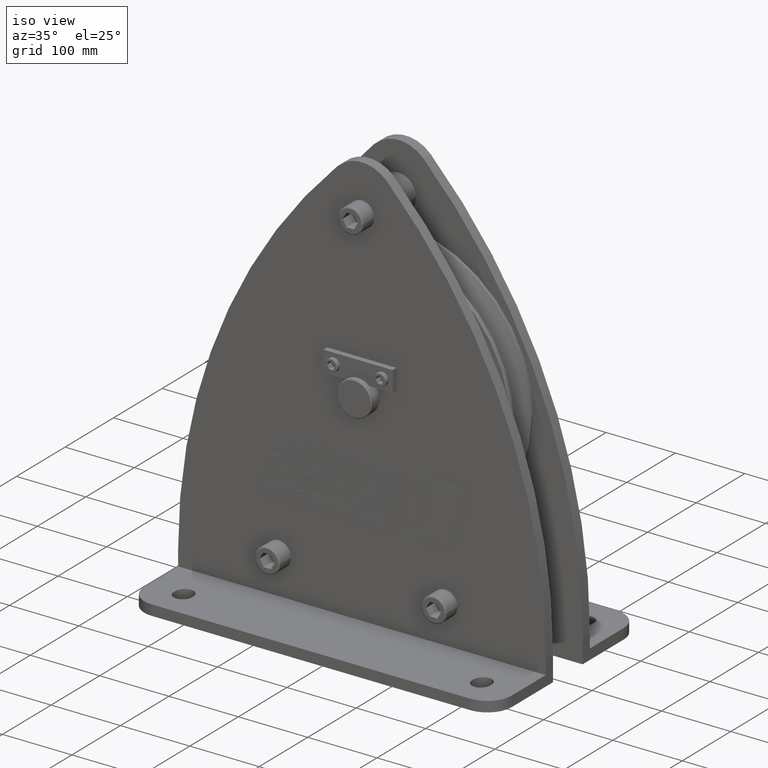
[diagram: clean part render]
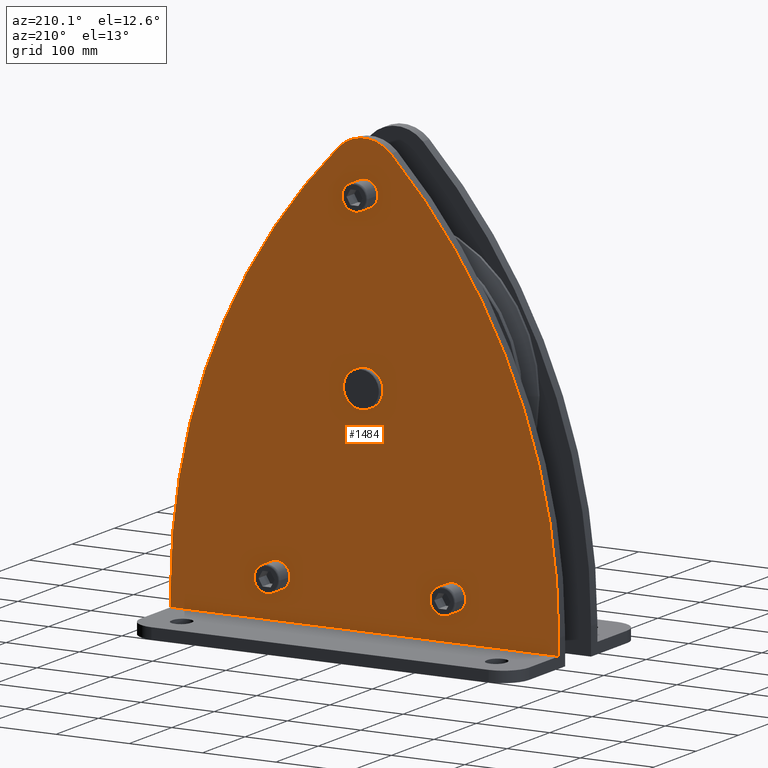
[diagram: tour spotlight — one face highlighted and labeled with its STEP entity id]
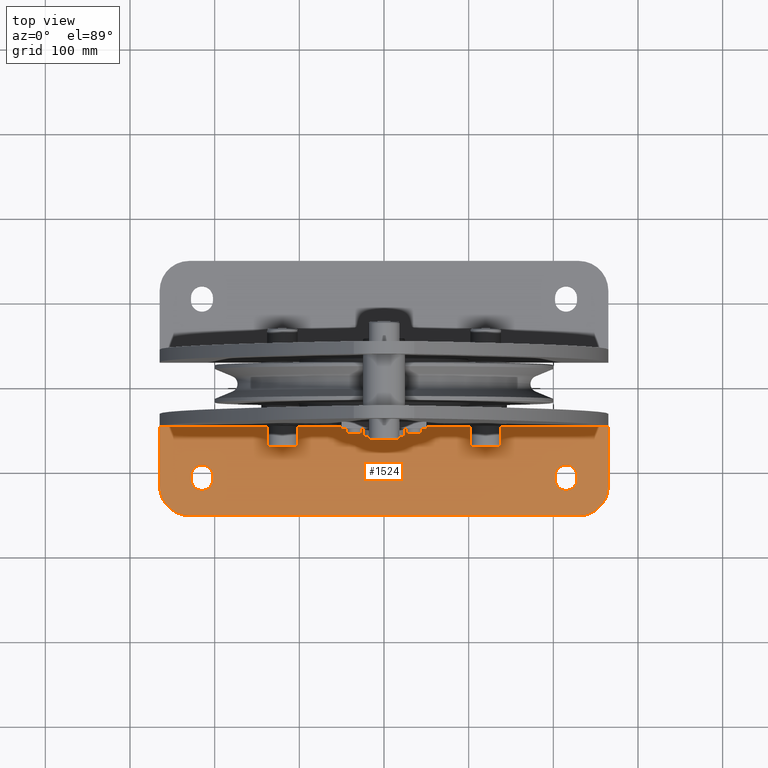
[diagram: tour spotlight — one face highlighted and labeled with its STEP entity id]
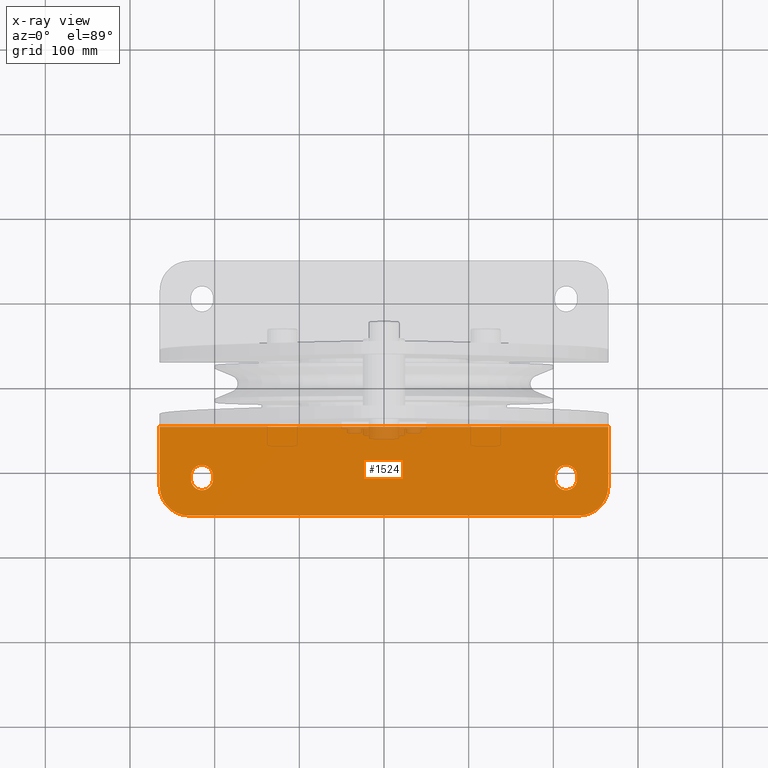
[diagram: x-ray of the same camera — body ghosted, this tour face saturated]
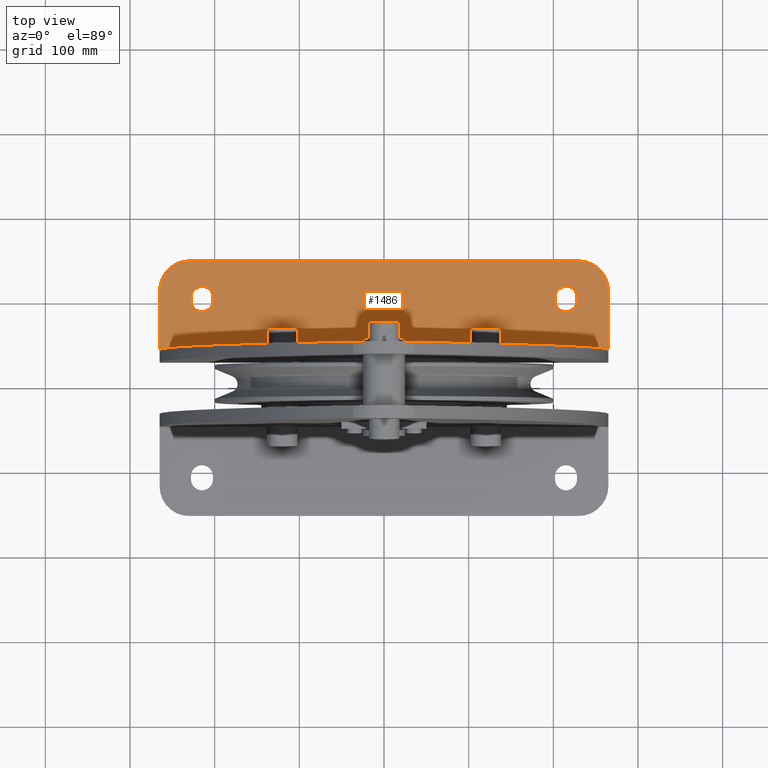
[diagram: tour spotlight — one face highlighted and labeled with its STEP entity id]
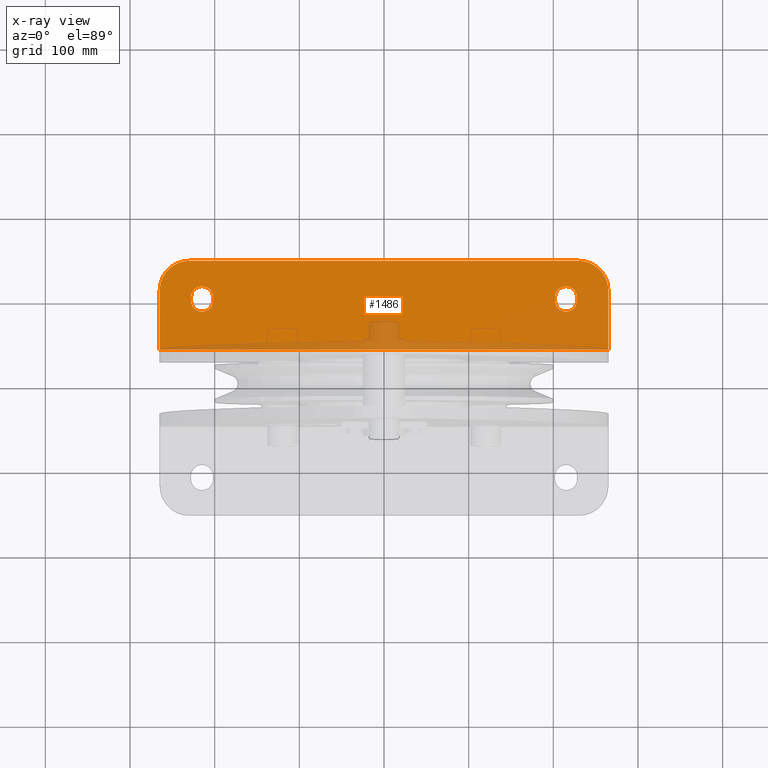
[diagram: x-ray of the same camera — body ghosted, this tour face saturated]
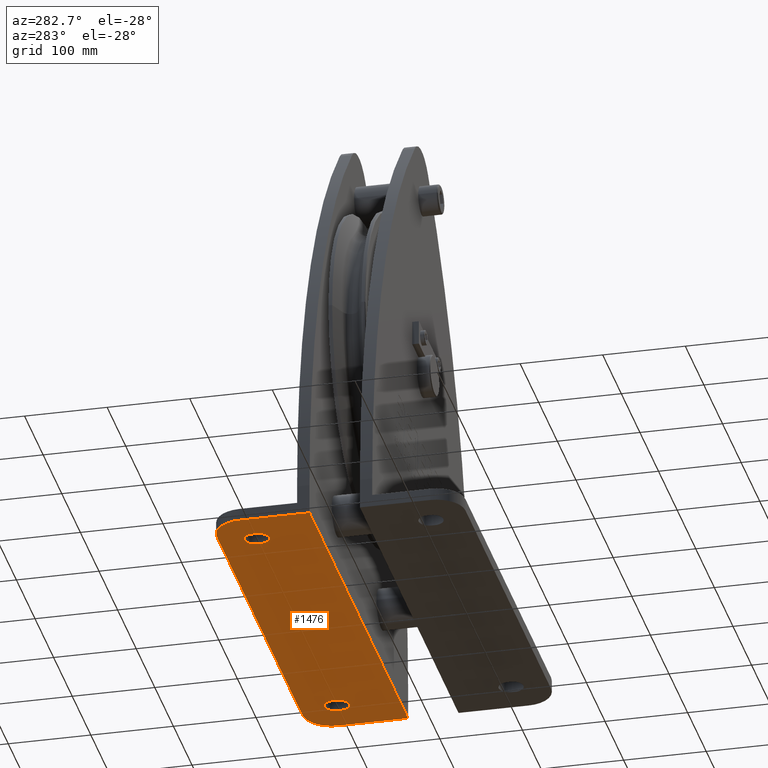
[diagram: tour spotlight — one face highlighted and labeled with its STEP entity id]
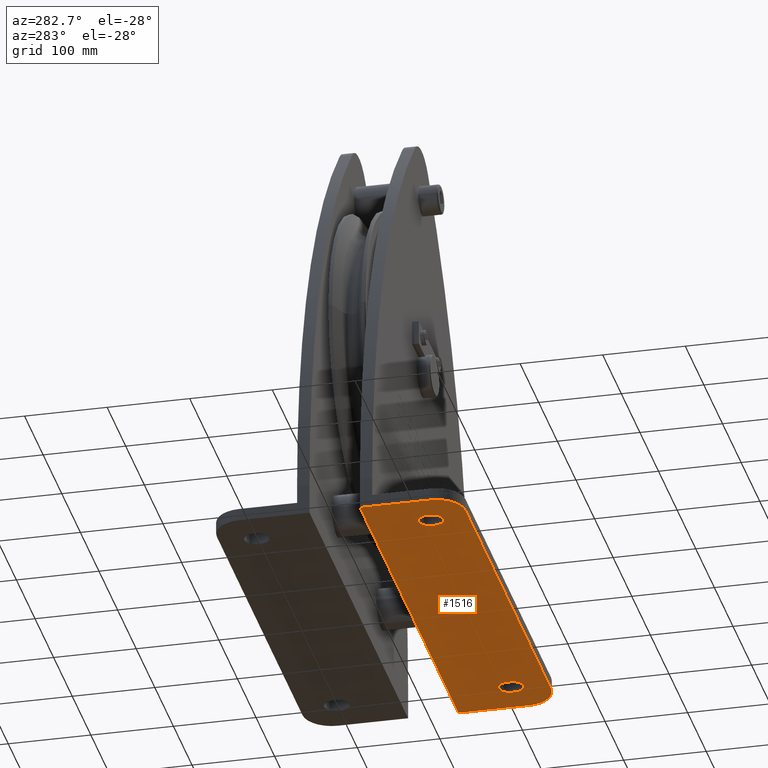
[diagram: tour spotlight — one face highlighted and labeled with its STEP entity id]
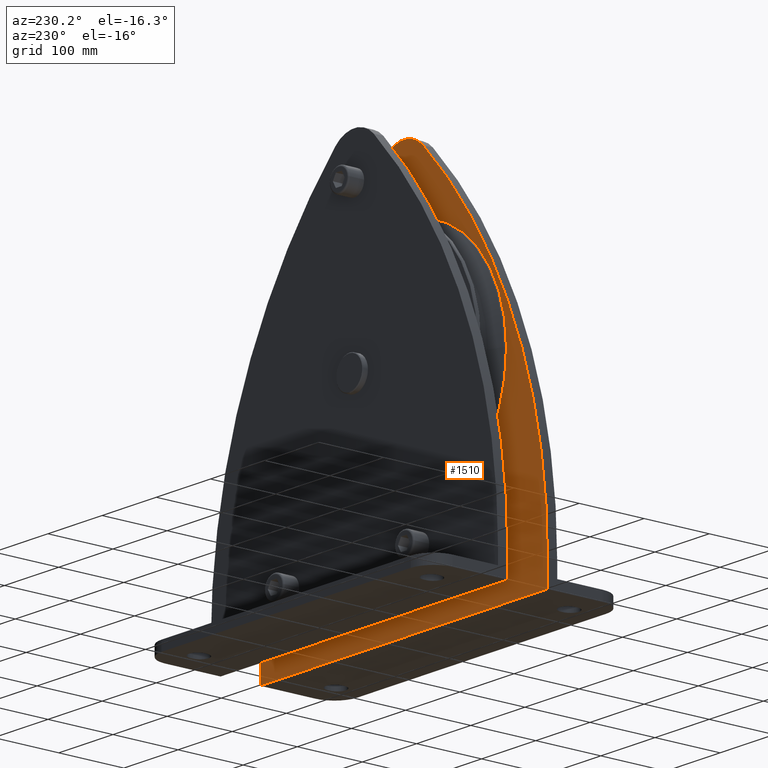
[diagram: tour spotlight — one face highlighted and labeled with its STEP entity id]
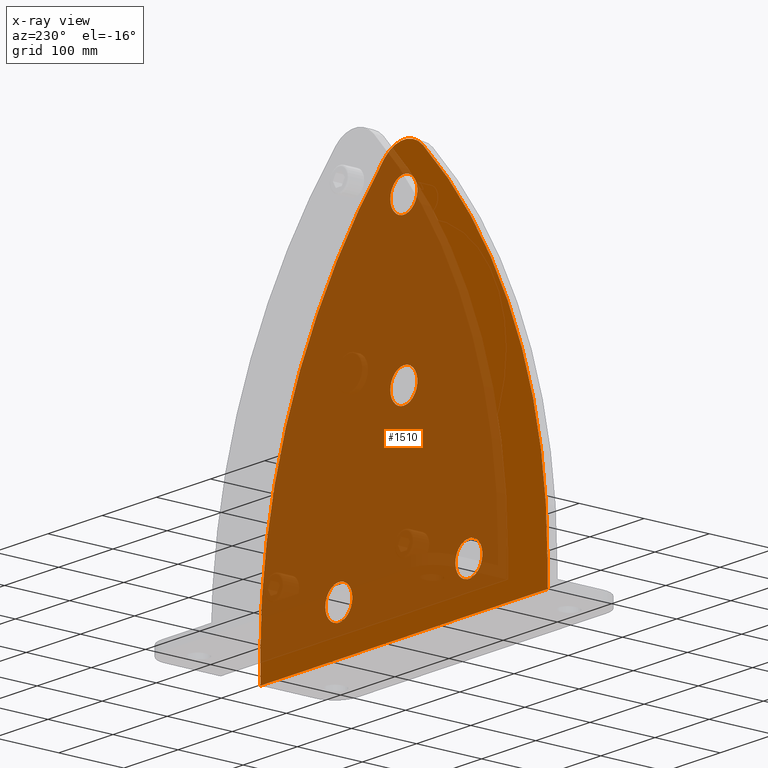
[diagram: x-ray of the same camera — body ghosted, this tour face saturated]
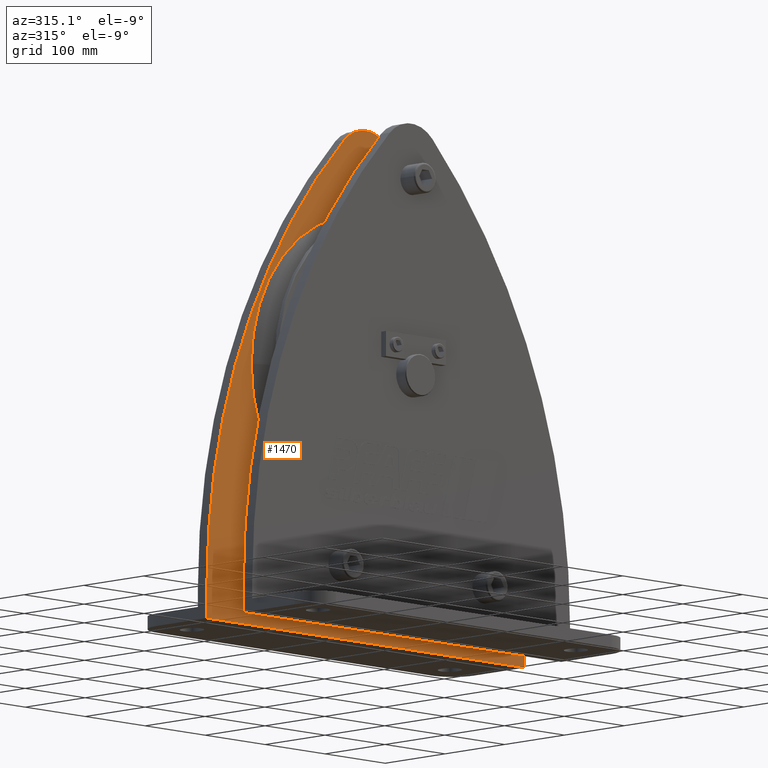
[diagram: tour spotlight — one face highlighted and labeled with its STEP entity id]
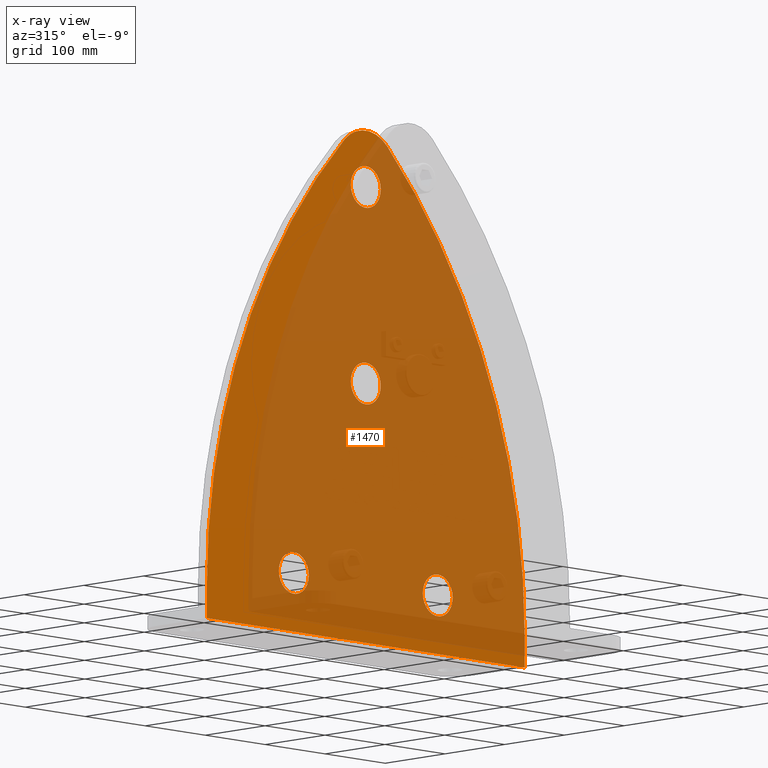
[diagram: x-ray of the same camera — body ghosted, this tour face saturated]
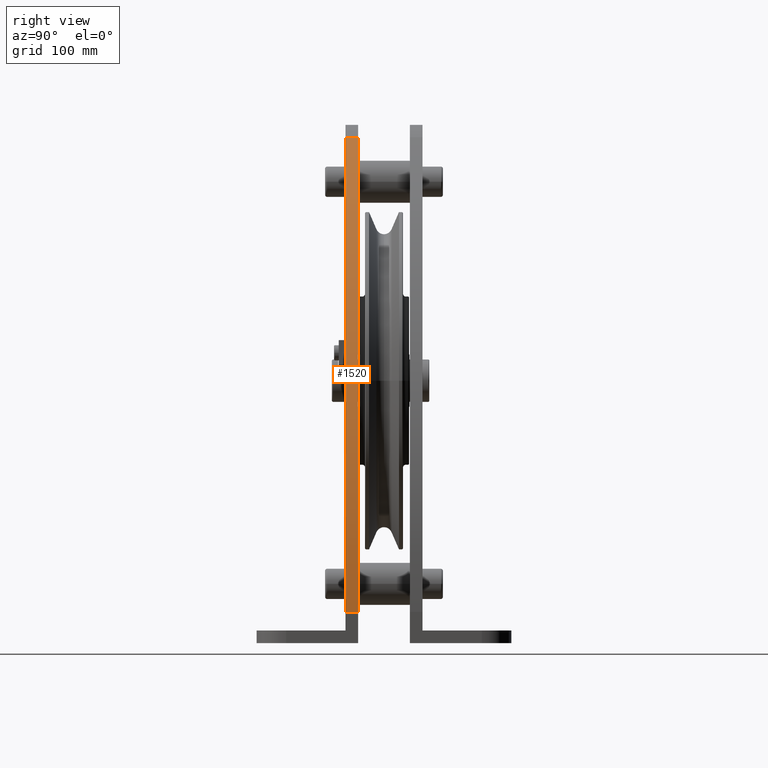
[diagram: tour spotlight — one face highlighted and labeled with its STEP entity id]
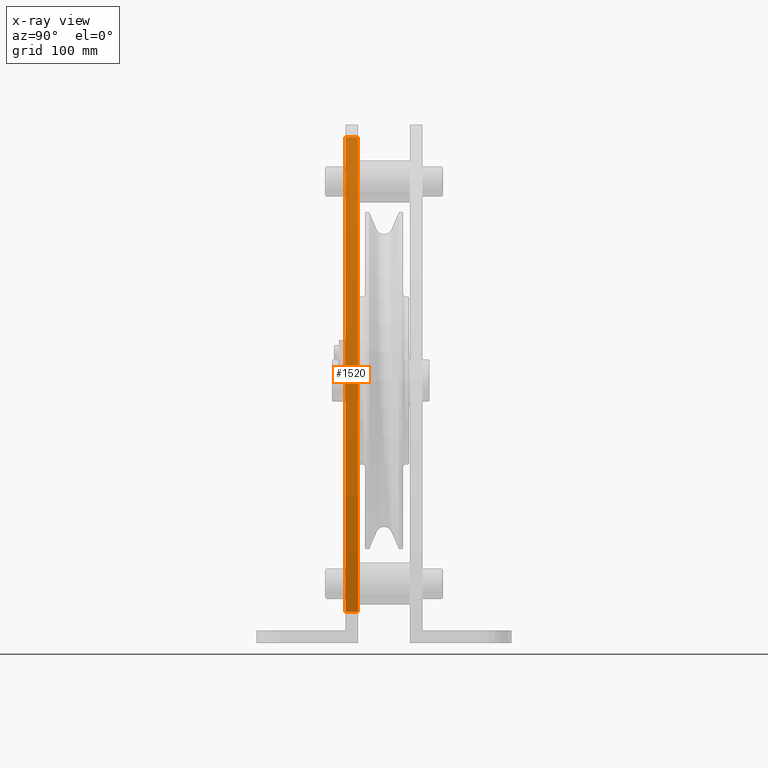
[diagram: x-ray of the same camera — body ghosted, this tour face saturated]
A machine part: a face-by-face anatomy tour. The part has 641 B-rep faces; the first image is the clean iso view, then the 8 largest visible faces are spotlighted one at a time (largest first), each with its STEP entity span.

Face 1 — auxiliary view, entity #1484. In plain terms, the highlighted planar face has unit normal (0, 1, 0).
Definition (entity closure, byte-faithful):
#1484=ADVANCED_FACE('',(#3237,#3238,#3239,#3240,#3241),#3242,.T.);
#3237=FACE_BOUND('',#5269,.T.);
#3238=FACE_BOUND('',#5270,.T.);
#3239=FACE_BOUND('',#5271,.T.);
#3240=FACE_BOUND('',#5272,.T.);
#3241=FACE_OUTER_BOUND('',#5273,.T.);
#3242=PLANE('',#5274);
#5269=EDGE_LOOP('',(#9953,#9954));
#5270=EDGE_LOOP('',(#9955,#9956));
#5271=EDGE_LOOP('',(#9957,#9958));
#5272=EDGE_LOOP('',(#9959,#9960,#9961));
#5273=EDGE_LOOP('',(#9962,#9963,#9964,#9965,#9966,#9967));
#5274=AXIS2_PLACEMENT_3D('',#9968,#9969,#9970);
#9953=ORIENTED_EDGE('',*,*,#12177,.T.);
#9954=ORIENTED_EDGE('',*,*,#13816,.T.);
#9955=ORIENTED_EDGE('',*,*,#12556,.T.);
#9956=ORIENTED_EDGE('',*,*,#13771,.T.);
#9957=ORIENTED_EDGE('',*,*,#12186,.T.);
#9958=ORIENTED_EDGE('',*,*,#13817,.T.);
#9959=ORIENTED_EDGE('',*,*,#12232,.T.);
#9960=ORIENTED_EDGE('',*,*,#13818,.T.);
#9961=ORIENTED_EDGE('',*,*,#12233,.T.);
#9962=ORIENTED_EDGE('',*,*,#13819,.T.);
#9963=ORIENTED_EDGE('',*,*,#13806,.F.);
#9964=ORIENTED_EDGE('',*,*,#13811,.F.);
#9965=ORIENTED_EDGE('',*,*,#13814,.F.);
#9966=ORIENTED_EDGE('',*,*,#13784,.F.);
#9967=ORIENTED_EDGE('',*,*,#13791,.F.);
#9968=CARTESIAN_POINT('',(-1.56119597077758E-012,45.5,-70.8780156493509));
#9969=DIRECTION('',(0.0,1.0,0.0));
#9970=DIRECTION('',(-1.0,0.0,0.0));
#12177=EDGE_CURVE('',#14637,#14639,#14641,.T.);
#12186=EDGE_CURVE('',#14652,#14654,#14656,.T.);
#12232=EDGE_CURVE('',#14735,#14732,#14736,.T.);
#12233=EDGE_CURVE('',#14737,#14735,#14738,.T.);
#12556=EDGE_CURVE('',#15268,#15272,#15274,.T.);
#13771=EDGE_CURVE('',#15272,#15268,#17082,.T.);
#13784=EDGE_CURVE('',#17101,#17102,#17103,.T.);
#13791=EDGE_CURVE('',#17111,#17101,#17113,.T.);
#13806=EDGE_CURVE('',#17139,#17140,#17141,.T.);
#13811=EDGE_CURVE('',#17147,#17139,#17148,.T.);
#13814=EDGE_CURVE('',#17102,#17147,#17151,.T.);
#13816=EDGE_CURVE('',#14639,#14637,#17153,.T.);
#13817=EDGE_CURVE('',#14654,#14652,#17154,.T.);
#13818=EDGE_CURVE('',#14732,#14737,#17155,.T.);
#13819=EDGE_CURVE('',#17111,#17140,#17156,.T.);
#14637=VERTEX_POINT('',#19396);
#14639=VERTEX_POINT('',#19399);
#14641=CIRCLE('',#19402,18.0);
#14652=VERTEX_POINT('',#19413);
#14654=VERTEX_POINT('',#19416);
#14656=CIRCLE('',#19419,18.0);
#14732=VERTEX_POINT('',#19507);
#14735=VERTEX_POINT('',#19511);
#14736=CIRCLE('',#19512,25.0);
#14737=VERTEX_POINT('',#19513);
#14738=CIRCLE('',#19514,25.0);
#15268=VERTEX_POINT('',#22132);
#15272=VERTEX_POINT('',#22137);
#15274=CIRCLE('',#22140,18.0);
#17082=CIRCLE('',#24603,18.0);
#17101=VERTEX_POINT('',#24625);
#17102=VERTEX_POINT('',#24626);
#17103=CIRCLE('',#24627,799.999999964301);
#17111=VERTEX_POINT('',#24639);
#17113=LINE('',#24642,#24643);
#17139=VERTEX_POINT('',#24675);
#17140=VERTEX_POINT('',#24676);
#17141=LINE('',#24677,#24678);
#17147=VERTEX_POINT('',#24687);
#17148=CIRCLE('',#24688,799.999999964301);
#17151=CIRCLE('',#24692,50.0000000115002);
#17153=CIRCLE('',#24694,18.0);
#17154=CIRCLE('',#24695,18.0);
#17155=CIRCLE('',#24696,25.0);
#17156=LINE('',#24697,#24698);
#19396=CARTESIAN_POINT('',(-102.0,45.5,-240.0));
#19399=CARTESIAN_POINT('',(-138.0,45.5,-240.0));
#19402=AXIS2_PLACEMENT_3D('',#26964,#26965,#26966);
#19413=CARTESIAN_POINT('',(18.0,45.5,235.0));
#19416=CARTESIAN_POINT('',(-18.0,45.5,235.0));
#19419=AXIS2_PLACEMENT_3D('',#26981,#26982,#26983);
#19507=CARTESIAN_POINT('',(3.06161699786838E-015,45.5,-25.0));
#19511=CARTESIAN_POINT('',(-25.0,45.5,0.0));
#19512=AXIS2_PLACEMENT_3D('',#27063,#27064,#27065);
#19513=CARTESIAN_POINT('',(-3.06161699786838E-015,45.5,25.0));
#19514=AXIS2_PLACEMENT_3D('',#27066,#27067,#27068);
#22132=CARTESIAN_POINT('',(138.0,45.5,-240.0));
#22137=CARTESIAN_POINT('',(102.0,45.5,-240.0));
#22140=AXIS2_PLACEMENT_3D('',#27496,#27497,#27498);
#24603=AXIS2_PLACEMENT_3D('',#28862,#28863,#28864);
#24625=CARTESIAN_POINT('',(265.0,45.5,-273.06553711024));
#24626=CARTESIAN_POINT('',(35.6666666697264,45.5,287.594391510256));
#24627=AXIS2_PLACEMENT_3D('',#28889,#28890,#28891);
#24639=CARTESIAN_POINT('',(265.0,45.5,-295.0));
#24642=CARTESIAN_POINT('',(265.0,45.5,-273.06553711));
#24643=VECTOR('',#28897,1.0);
#24675=CARTESIAN_POINT('',(-265.0,45.5,-273.06553711));
#24676=CARTESIAN_POINT('',(-265.0,45.5,-295.0));
#24677=CARTESIAN_POINT('',(-265.0,45.5,-310.0));
#24678=VECTOR('',#28922,1.0);
#24687=CARTESIAN_POINT('',(-35.6666666697263,45.5,287.594391510256));
#24688=AXIS2_PLACEMENT_3D('',#28926,#28927,#28928);
#24692=AXIS2_PLACEMENT_3D('',#28930,#28931,#28932);
#24694=AXIS2_PLACEMENT_3D('',#28933,#28934,#28935);
#24695=AXIS2_PLACEMENT_3D('',#28936,#28937,#28938);
#24696=AXIS2_PLACEMENT_3D('',#28939,#28940,#28941);
#24697=CARTESIAN_POINT('',(-7.95807864051312E-013,45.5,-295.0));
#24698=VECTOR('',#28942,1.0);
#26964=CARTESIAN_POINT('',(-120.0,45.5,-240.0));
#26965=DIRECTION('',(0.0,-1.0,0.0));
#26966=DIRECTION('',(1.0,0.0,0.0));
#26981=CARTESIAN_POINT('',(0.0,45.5,235.0));
#26982=DIRECTION('',(0.0,-1.0,0.0));
#26983=DIRECTION('',(1.0,0.0,0.0));
#27063=CARTESIAN_POINT('',(0.0,45.5,0.0));
#27064=DIRECTION('',(-0.0,-1.0,-0.0));
#27065=DIRECTION('',(-1.0,0.0,0.0));
#27066=CARTESIAN_POINT('',(0.0,45.5,0.0));
#27067=DIRECTION('',(-0.0,-1.0,-0.0));
#27068=DIRECTION('',(-1.0,0.0,0.0));
#27496=CARTESIAN_POINT('',(120.0,45.5,-240.0));
#27497=DIRECTION('',(0.0,-1.0,0.0));
#27498=DIRECTION('',(1.0,0.0,0.0));
#28862=CARTESIAN_POINT('',(120.0,45.5,-240.0));
#28863=DIRECTION('',(0.0,-1.0,0.0));
#28864=DIRECTION('',(1.0,0.0,0.0));
#28889=CARTESIAN_POINT('',(-534.999999964302,45.5,-273.0655370879));
#28890=DIRECTION('',(0.0,-1.0,0.0));
#28891=DIRECTION('',(0.713333333324367,0.0,0.700824910778968));
#28897=DIRECTION('',(0.0,0.0,1.0));
#28922=DIRECTION('',(0.0,-0.0,-1.0));
#28926=CARTESIAN_POINT('',(534.999999964301,45.5,-273.0655370879));
#28927=DIRECTION('',(0.0,-1.0,-0.0));
#28928=DIRECTION('',(-1.0,0.0,-2.79251111136274E-011));
#28930=CARTESIAN_POINT('',(-1.4210854715202E-014,45.5,252.5531459585));
#28931=DIRECTION('',(0.0,-1.0,0.0));
#28932=DIRECTION('',(-0.713333333236294,0.0,0.700824910868612));
#28933=CARTESIAN_POINT('',(-120.0,45.5,-240.0));
#28934=DIRECTION('',(0.0,-1.0,0.0));
#28935=DIRECTION('',(1.0,0.0,0.0));
#28936=CARTESIAN_POINT('',(0.0,45.5,235.0));
#28937=DIRECTION('',(0.0,-1.0,0.0));
#28938=DIRECTION('',(1.0,0.0,0.0));
#28939=CARTESIAN_POINT('',(0.0,45.5,0.0));
#28940=DIRECTION('',(-0.0,-1.0,-0.0));
#28941=DIRECTION('',(-1.0,0.0,0.0));
#28942=DIRECTION('',(-1.0,0.0,0.0));

Face 2 — top view, entity #1524. An x-ray twin of the same camera follows (body ghosted, this face saturated) — the face is partly hidden behind the body. In plain terms, the highlighted planar face has unit normal (0, 0, 1).
Definition (entity closure, byte-faithful):
#1524=ADVANCED_FACE('',(#3309,#3310,#3311),#3312,.T.);
#3309=FACE_BOUND('',#5341,.T.);
#3310=FACE_BOUND('',#5342,.T.);
#3311=FACE_OUTER_BOUND('',#5343,.T.);
#3312=PLANE('',#5344);
#5341=EDGE_LOOP('',(#10159,#10160,#10161,#10162));
#5342=EDGE_LOOP('',(#10163,#10164,#10165,#10166));
#5343=EDGE_LOOP('',(#10167,#10168,#10169,#10170,#10171,#10172));
#5344=AXIS2_PLACEMENT_3D('',#10173,#10174,#10175);
#10159=ORIENTED_EDGE('',*,*,#13893,.T.);
#10160=ORIENTED_EDGE('',*,*,#13894,.T.);
#10161=ORIENTED_EDGE('',*,*,#13895,.T.);
#10162=ORIENTED_EDGE('',*,*,#13896,.T.);
#10163=ORIENTED_EDGE('',*,*,#13897,.T.);
#10164=ORIENTED_EDGE('',*,*,#13898,.T.);
#10165=ORIENTED_EDGE('',*,*,#13899,.T.);
#10166=ORIENTED_EDGE('',*,*,#13900,.T.);
#10167=ORIENTED_EDGE('',*,*,#13901,.F.);
#10168=ORIENTED_EDGE('',*,*,#13886,.F.);
#10169=ORIENTED_EDGE('',*,*,#12858,.F.);
#10170=ORIENTED_EDGE('',*,*,#13871,.F.);
#10171=ORIENTED_EDGE('',*,*,#13902,.F.);
#10172=ORIENTED_EDGE('',*,*,#13903,.F.);
#10173=CARTESIAN_POINT('',(-8.88178419700125E-015,-96.545791878059,-295.0));
#10174=DIRECTION('',(0.0,0.0,1.0));
#10175=DIRECTION('',(1.0,0.0,0.0));
#12858=EDGE_CURVE('',#15820,#15821,#15822,.T.);
#13871=EDGE_CURVE('',#17225,#15820,#17227,.T.);
#13886=EDGE_CURVE('',#15821,#17253,#17254,.T.);
#13893=EDGE_CURVE('',#17261,#17262,#17263,.T.);
#13894=EDGE_CURVE('',#17262,#17264,#17265,.T.);
#13895=EDGE_CURVE('',#17264,#17266,#17267,.T.);
#13896=EDGE_CURVE('',#17266,#17261,#17268,.T.);
#13897=EDGE_CURVE('',#17269,#17270,#17271,.T.);
#13898=EDGE_CURVE('',#17270,#17272,#17273,.T.);
#13899=EDGE_CURVE('',#17272,#17274,#17275,.T.);
#13900=EDGE_CURVE('',#17274,#17269,#17276,.T.);
#13901=EDGE_CURVE('',#17253,#17277,#17278,.T.);
#13902=EDGE_CURVE('',#17279,#17225,#17280,.T.);
#13903=EDGE_CURVE('',#17277,#17279,#17281,.T.);
#15820=VERTEX_POINT('',#22856);
#15821=VERTEX_POINT('',#22857);
#15822=LINE('',#22858,#22859);
#17225=VERTEX_POINT('',#24788);
#17227=LINE('',#24791,#24792);
#17253=VERTEX_POINT('',#24824);
#17254=LINE('',#24825,#24826);
#17261=VERTEX_POINT('',#24836);
#17262=VERTEX_POINT('',#24837);
#17263=CIRCLE('',#24838,13.0);
#17264=VERTEX_POINT('',#24839);
#17265=LINE('',#24840,#24841);
#17266=VERTEX_POINT('',#24842);
#17267=CIRCLE('',#24843,13.0);
#17268=LINE('',#24844,#24845);
#17269=VERTEX_POINT('',#24846);
#17270=VERTEX_POINT('',#24847);
#17271=CIRCLE('',#24848,13.0);
#17272=VERTEX_POINT('',#24849);
#17273=LINE('',#24850,#24851);
#17274=VERTEX_POINT('',#24852);
#17275=CIRCLE('',#24853,13.0);
#17276=LINE('',#24854,#24855);
#17277=VERTEX_POINT('',#24856);
#17278=CIRCLE('',#24857,35.0000000052);
#17279=VERTEX_POINT('',#24858);
#17280=CIRCLE('',#24859,35.0000000051998);
#17281=LINE('',#24860,#24861);
#22856=CARTESIAN_POINT('',(-265.0,-45.5,-295.0));
#22857=CARTESIAN_POINT('',(265.0,-45.5,-295.0));
#22858=CARTESIAN_POINT('',(7.95807864051312E-013,-45.5,-295.0));
#22859=VECTOR('',#27975,1.0);
#24788=CARTESIAN_POINT('',(-265.0,-115.499999999992,-295.0));
#24791=CARTESIAN_POINT('',(-265.0,-115.5,-295.0));
#24792=VECTOR('',#29007,1.0);
#24824=CARTESIAN_POINT('',(265.0,-115.5,-295.0));
#24825=CARTESIAN_POINT('',(265.0,-45.5,-295.0));
#24826=VECTOR('',#29032,1.0);
#24836=CARTESIAN_POINT('',(228.0,-107.5,-295.0));
#24837=CARTESIAN_POINT('',(202.0,-107.5,-295.0));
#24838=AXIS2_PLACEMENT_3D('',#29036,#29037,#29038);
#24839=CARTESIAN_POINT('',(202.0,-103.5,-295.0));
#24840=CARTESIAN_POINT('',(202.0,-101.02289593903,-295.0));
#24841=VECTOR('',#29039,1.0);
#24842=CARTESIAN_POINT('',(228.0,-103.5,-295.0));
#24843=AXIS2_PLACEMENT_3D('',#29040,#29041,#29042);
#24844=CARTESIAN_POINT('',(228.0,-101.02289593903,-295.0));
#24845=VECTOR('',#29043,1.0);
#24846=CARTESIAN_POINT('',(-202.0,-107.5,-295.0));
#24847=CARTESIAN_POINT('',(-228.0,-107.5,-295.0));
#24848=AXIS2_PLACEMENT_3D('',#29044,#29045,#29046);
#24849=CARTESIAN_POINT('',(-228.0,-103.5,-295.0));
#24850=CARTESIAN_POINT('',(-228.0,-101.02289593903,-295.0));
#24851=VECTOR('',#29047,1.0);
#24852=CARTESIAN_POINT('',(-202.0,-103.5,-295.0));
#24853=AXIS2_PLACEMENT_3D('',#29048,#29049,#29050);
#24854=CARTESIAN_POINT('',(-202.0,-101.02289593903,-295.0));
#24855=VECTOR('',#29051,1.0);
#24856=CARTESIAN_POINT('',(229.999999999992,-150.5,-295.0));
#24857=AXIS2_PLACEMENT_3D('',#29052,#29053,#29054);
#24858=CARTESIAN_POINT('',(-230.0,-150.5,-295.0));
#24859=AXIS2_PLACEMENT_3D('',#29055,#29056,#29057);
#24860=CARTESIAN_POINT('',(230.0,-150.5,-295.0));
#24861=VECTOR('',#29058,1.0);
#27975=DIRECTION('',(1.0,0.0,-0.0));
#29007=DIRECTION('',(0.0,1.0,0.0));
#29032=DIRECTION('',(0.0,-1.0,0.0));
#29036=CARTESIAN_POINT('',(215.0,-107.5,-295.0));
#29037=DIRECTION('',(0.0,0.0,-1.0));
#29038=DIRECTION('',(1.0,2.90366021825041E-016,0.0));
#29039=DIRECTION('',(0.0,1.0,-0.0));
#29040=CARTESIAN_POINT('',(215.0,-103.5,-295.0));
#29041=DIRECTION('',(-0.0,0.0,-1.0));
#29042=DIRECTION('',(-1.0,0.0,0.0));
#29043=DIRECTION('',(-0.0,-1.0,0.0));
#29044=CARTESIAN_POINT('',(-215.0,-107.5,-295.0));
#29045=DIRECTION('',(0.0,0.0,-1.0));
#29046=DIRECTION('',(1.0,2.90366021825041E-016,0.0));
#29047=DIRECTION('',(0.0,1.0,-0.0));
#29048=CARTESIAN_POINT('',(-215.0,-103.5,-295.0));
#29049=DIRECTION('',(-0.0,0.0,-1.0));
#29050=DIRECTION('',(-1.0,0.0,0.0));
#29051=DIRECTION('',(-0.0,-1.0,0.0));
#29052=CARTESIAN_POINT('',(229.9999999948,-115.4999999948,-295.0));
#29053=DIRECTION('',(0.0,-0.0,-1.0));
#29054=DIRECTION('',(1.48353202716259E-010,-1.0,0.0));
#29055=CARTESIAN_POINT('',(-229.9999999948,-115.4999999948,-295.0));
#29056=DIRECTION('',(-0.0,0.0,-1.0));
#29057=DIRECTION('',(-1.0,-1.48349142472056E-010,0.0));
#29058=DIRECTION('',(-1.0,0.0,0.0));

Face 3 — top view, entity #1486. An x-ray twin of the same camera follows (body ghosted, this face saturated) — the face is partly hidden behind the body. In plain terms, the highlighted planar face has unit normal (0, 0, 1).
Definition (entity closure, byte-faithful):
#1486=ADVANCED_FACE('',(#3244,#3245,#3246),#3247,.T.);
#3244=FACE_BOUND('',#5276,.T.);
#3245=FACE_BOUND('',#5277,.T.);
#3246=FACE_OUTER_BOUND('',#5278,.T.);
#3247=PLANE('',#5279);
#5276=EDGE_LOOP('',(#9972,#9973,#9974,#9975));
#5277=EDGE_LOOP('',(#9976,#9977,#9978,#9979));
#5278=EDGE_LOOP('',(#9980,#9981,#9982,#9983,#9984,#9985));
#5279=AXIS2_PLACEMENT_3D('',#9986,#9987,#9988);
#9972=ORIENTED_EDGE('',*,*,#13821,.T.);
#9973=ORIENTED_EDGE('',*,*,#13822,.T.);
#9974=ORIENTED_EDGE('',*,*,#13823,.T.);
#9975=ORIENTED_EDGE('',*,*,#13824,.T.);
#9976=ORIENTED_EDGE('',*,*,#13825,.T.);
#9977=ORIENTED_EDGE('',*,*,#13826,.T.);
#9978=ORIENTED_EDGE('',*,*,#13827,.T.);
#9979=ORIENTED_EDGE('',*,*,#13828,.T.);
#9980=ORIENTED_EDGE('',*,*,#13829,.F.);
#9981=ORIENTED_EDGE('',*,*,#13807,.F.);
#9982=ORIENTED_EDGE('',*,*,#13819,.F.);
#9983=ORIENTED_EDGE('',*,*,#13790,.F.);
#9984=ORIENTED_EDGE('',*,*,#13830,.F.);
#9985=ORIENTED_EDGE('',*,*,#13831,.F.);
#9986=CARTESIAN_POINT('',(8.88178419700125E-015,96.545791878059,-295.0));
#9987=DIRECTION('',(0.0,0.0,1.0));
#9988=DIRECTION('',(-1.0,0.0,0.0));
#13790=EDGE_CURVE('',#17109,#17111,#17112,.T.);
#13807=EDGE_CURVE('',#17140,#17142,#17143,.T.);
#13819=EDGE_CURVE('',#17111,#17140,#17156,.T.);
#13821=EDGE_CURVE('',#17158,#17159,#17160,.T.);
#13822=EDGE_CURVE('',#17159,#17161,#17162,.T.);
#13823=EDGE_CURVE('',#17161,#17163,#17164,.T.);
#13824=EDGE_CURVE('',#17163,#17158,#17165,.T.);
#13825=EDGE_CURVE('',#17166,#17167,#17168,.T.);
#13826=EDGE_CURVE('',#17167,#17169,#17170,.T.);
#13827=EDGE_CURVE('',#17169,#17171,#17172,.T.);
#13828=EDGE_CURVE('',#17171,#17166,#17173,.T.);
#13829=EDGE_CURVE('',#17142,#17174,#17175,.T.);
#13830=EDGE_CURVE('',#17176,#17109,#17177,.T.);
#13831=EDGE_CURVE('',#17174,#17176,#17178,.T.);
#17109=VERTEX_POINT('',#24636);
#17111=VERTEX_POINT('',#24639);
#17112=LINE('',#24640,#24641);
#17140=VERTEX_POINT('',#24676);
#17142=VERTEX_POINT('',#24679);
#17143=LINE('',#24680,#24681);
#17156=LINE('',#24697,#24698);
#17158=VERTEX_POINT('',#24700);
#17159=VERTEX_POINT('',#24701);
#17160=CIRCLE('',#24702,13.0);
#17161=VERTEX_POINT('',#24703);
#17162=LINE('',#24704,#24705);
#17163=VERTEX_POINT('',#24706);
#17164=CIRCLE('',#24707,13.0);
#17165=LINE('',#24708,#24709);
#17166=VERTEX_POINT('',#24710);
#17167=VERTEX_POINT('',#24711);
#17168=CIRCLE('',#24712,13.0);
#17169=VERTEX_POINT('',#24713);
#17170=LINE('',#24714,#24715);
#17171=VERTEX_POINT('',#24716);
#17172=CIRCLE('',#24717,13.0);
#17173=LINE('',#24718,#24719);
#17174=VERTEX_POINT('',#24720);
#17175=CIRCLE('',#24721,35.0000000052);
#17176=VERTEX_POINT('',#24722);
#17177=CIRCLE('',#24723,35.0000000051998);
#17178=LINE('',#24724,#24725);
#24636=CARTESIAN_POINT('',(265.0,115.499999999992,-295.0));
#24639=CARTESIAN_POINT('',(265.0,45.5,-295.0));
#24640=CARTESIAN_POINT('',(265.0,115.5,-295.0));
#24641=VECTOR('',#28896,1.0);
#24676=CARTESIAN_POINT('',(-265.0,45.5,-295.0));
#24679=CARTESIAN_POINT('',(-265.0,115.5,-295.0));
#24680=CARTESIAN_POINT('',(-265.0,45.5,-295.0));
#24681=VECTOR('',#28923,1.0);
#24697=CARTESIAN_POINT('',(-7.95807864051312E-013,45.5,-295.0));
#24698=VECTOR('',#28942,1.0);
#24700=CARTESIAN_POINT('',(-228.0,107.5,-295.0));
#24701=CARTESIAN_POINT('',(-202.0,107.5,-295.0));
#24702=AXIS2_PLACEMENT_3D('',#28943,#28944,#28945);
#24703=CARTESIAN_POINT('',(-202.0,103.5,-295.0));
#24704=CARTESIAN_POINT('',(-202.0,101.02289593903,-295.0));
#24705=VECTOR('',#28946,1.0);
#24706=CARTESIAN_POINT('',(-228.0,103.5,-295.0));
#24707=AXIS2_PLACEMENT_3D('',#28947,#28948,#28949);
#24708=CARTESIAN_POINT('',(-228.0,101.02289593903,-295.0));
#24709=VECTOR('',#28950,1.0);
#24710=CARTESIAN_POINT('',(202.0,107.5,-295.0));
#24711=CARTESIAN_POINT('',(228.0,107.5,-295.0));
#24712=AXIS2_PLACEMENT_3D('',#28951,#28952,#28953);
#24713=CARTESIAN_POINT('',(228.0,103.5,-295.0));
#24714=CARTESIAN_POINT('',(228.0,101.02289593903,-295.0));
#24715=VECTOR('',#28954,1.0);
#24716=CARTESIAN_POINT('',(202.0,103.5,-295.0));
#24717=AXIS2_PLACEMENT_3D('',#28955,#28956,#28957);
#24718=CARTESIAN_POINT('',(202.0,101.02289593903,-295.0));
#24719=VECTOR('',#28958,1.0);
#24720=CARTESIAN_POINT('',(-229.999999999992,150.5,-295.0));
#24721=AXIS2_PLACEMENT_3D('',#28959,#28960,#28961);
#24722=CARTESIAN_POINT('',(230.0,150.5,-295.0));
#24723=AXIS2_PLACEMENT_3D('',#28962,#28963,#28964);
#24724=CARTESIAN_POINT('',(-230.0,150.5,-295.0));
#24725=VECTOR('',#28965,1.0);
#28896=DIRECTION('',(0.0,-1.0,0.0));
#28923=DIRECTION('',(0.0,1.0,0.0));
#28942=DIRECTION('',(-1.0,0.0,0.0));
#28943=CARTESIAN_POINT('',(-215.0,107.5,-295.0));
#28944=DIRECTION('',(-0.0,0.0,-1.0));
#28945=DIRECTION('',(-1.0,-2.90366021825041E-016,0.0));
#28946=DIRECTION('',(0.0,-1.0,0.0));
#28947=CARTESIAN_POINT('',(-215.0,103.5,-295.0));
#28948=DIRECTION('',(0.0,0.0,-1.0));
#28949=DIRECTION('',(1.0,0.0,0.0));
#28950=DIRECTION('',(0.0,1.0,-0.0));
#28951=CARTESIAN_POINT('',(215.0,107.5,-295.0));
#28952=DIRECTION('',(-0.0,0.0,-1.0));
#28953=DIRECTION('',(-1.0,-2.90366021825041E-016,0.0));
#28954=DIRECTION('',(0.0,-1.0,0.0));
#28955=CARTESIAN_POINT('',(215.0,103.5,-295.0));
#28956=DIRECTION('',(0.0,0.0,-1.0));
#28957=DIRECTION('',(1.0,0.0,0.0));
#28958=DIRECTION('',(0.0,1.0,-0.0));
#28959=CARTESIAN_POINT('',(-229.9999999948,115.4999999948,-295.0));
#28960=DIRECTION('',(0.0,0.0,-1.0));
#28961=DIRECTION('',(-1.48353202716259E-010,1.0,0.0));
#28962=CARTESIAN_POINT('',(229.9999999948,115.4999999948,-295.0));
#28963=DIRECTION('',(0.0,0.0,-1.0));
#28964=DIRECTION('',(1.0,1.48349142472056E-010,0.0));
#28965=DIRECTION('',(1.0,0.0,0.0));

Face 4 — auxiliary view, entity #1476. In plain terms, the highlighted planar face has unit normal (0, 0, -1).
Definition (entity closure, byte-faithful):
#1476=ADVANCED_FACE('',(#3223,#3224,#3225),#3226,.T.);
#3223=FACE_BOUND('',#5255,.T.);
#3224=FACE_BOUND('',#5256,.T.);
#3225=FACE_OUTER_BOUND('',#5257,.T.);
#3226=PLANE('',#5258);
#5255=EDGE_LOOP('',(#9909,#9910,#9911,#9912));
#5256=EDGE_LOOP('',(#9913,#9914,#9915,#9916));
#5257=EDGE_LOOP('',(#9917,#9918,#9919,#9920,#9921,#9922));
#5258=AXIS2_PLACEMENT_3D('',#9923,#9924,#9925);
#9909=ORIENTED_EDGE('',*,*,#13793,.T.);
#9910=ORIENTED_EDGE('',*,*,#13794,.T.);
#9911=ORIENTED_EDGE('',*,*,#13795,.T.);
#9912=ORIENTED_EDGE('',*,*,#13796,.T.);
#9913=ORIENTED_EDGE('',*,*,#13797,.T.);
#9914=ORIENTED_EDGE('',*,*,#13798,.T.);
#9915=ORIENTED_EDGE('',*,*,#13799,.T.);
#9916=ORIENTED_EDGE('',*,*,#13800,.T.);
#9917=ORIENTED_EDGE('',*,*,#13801,.T.);
#9918=ORIENTED_EDGE('',*,*,#13802,.F.);
#9919=ORIENTED_EDGE('',*,*,#13803,.T.);
#9920=ORIENTED_EDGE('',*,*,#13804,.F.);
#9921=ORIENTED_EDGE('',*,*,#13788,.F.);
#9922=ORIENTED_EDGE('',*,*,#13781,.T.);
#9923=CARTESIAN_POINT('',(0.0,30.5,-310.0));
#9924=DIRECTION('',(0.0,0.0,-1.0));
#9925=DIRECTION('',(-1.0,0.0,0.0));
#13781=EDGE_CURVE('',#17097,#17095,#17098,.T.);
#13788=EDGE_CURVE('',#17097,#17107,#17108,.T.);
#13793=EDGE_CURVE('',#17115,#17116,#17117,.T.);
#13794=EDGE_CURVE('',#17116,#17118,#17119,.T.);
#13795=EDGE_CURVE('',#17118,#17120,#17121,.T.);
#13796=EDGE_CURVE('',#17120,#17115,#17122,.T.);
#13797=EDGE_CURVE('',#17123,#17124,#17125,.T.);
#13798=EDGE_CURVE('',#17124,#17126,#17127,.T.);
#13799=EDGE_CURVE('',#17126,#17128,#17129,.T.);
#13800=EDGE_CURVE('',#17128,#17123,#17130,.T.);
#13801=EDGE_CURVE('',#17095,#17131,#17132,.T.);
#13802=EDGE_CURVE('',#17133,#17131,#17134,.T.);
#13803=EDGE_CURVE('',#17133,#17135,#17136,.T.);
#13804=EDGE_CURVE('',#17107,#17135,#17137,.T.);
#17095=VERTEX_POINT('',#24616);
#17097=VERTEX_POINT('',#24619);
#17098=LINE('',#24620,#24621);
#17107=VERTEX_POINT('',#24633);
#17108=LINE('',#24634,#24635);
#17115=VERTEX_POINT('',#24645);
#17116=VERTEX_POINT('',#24646);
#17117=CIRCLE('',#24647,13.0);
#17118=VERTEX_POINT('',#24648);
#17119=LINE('',#24649,#24650);
#17120=VERTEX_POINT('',#24651);
#17121=CIRCLE('',#24652,13.0);
#17122=LINE('',#24653,#24654);
#17123=VERTEX_POINT('',#24655);
#17124=VERTEX_POINT('',#24656);
#17125=CIRCLE('',#24657,13.0);
#17126=VERTEX_POINT('',#24658);
#17127=LINE('',#24659,#24660);
#17128=VERTEX_POINT('',#24661);
#17129=CIRCLE('',#24662,13.0);
#17130=LINE('',#24663,#24664);
#17131=VERTEX_POINT('',#24665);
#17132=LINE('',#24666,#24667);
#17133=VERTEX_POINT('',#24668);
#17134=CIRCLE('',#24669,35.0000000052);
#17135=VERTEX_POINT('',#24670);
#17136=LINE('',#24671,#24672);
#17137=CIRCLE('',#24673,35.0000000051998);
#24616=CARTESIAN_POINT('',(-265.0,30.5,-310.0));
#24619=CARTESIAN_POINT('',(265.0,30.5,-310.0));
#24620=CARTESIAN_POINT('',(265.0,30.5,-310.0));
#24621=VECTOR('',#28887,1.0);
#24633=CARTESIAN_POINT('',(265.0,115.499999999992,-310.0));
#24634=CARTESIAN_POINT('',(265.0,30.5,-310.0));
#24635=VECTOR('',#28894,1.0);
#24645=CARTESIAN_POINT('',(-202.0,107.5,-310.0));
#24646=CARTESIAN_POINT('',(-228.0,107.5,-310.0));
#24647=AXIS2_PLACEMENT_3D('',#28898,#28899,#28900);
#24648=CARTESIAN_POINT('',(-228.0,103.5,-310.0));
#24649=CARTESIAN_POINT('',(-228.0,68.0,-310.0));
#24650=VECTOR('',#28901,1.0);
#24651=CARTESIAN_POINT('',(-202.0,103.5,-310.0));
#24652=AXIS2_PLACEMENT_3D('',#28902,#28903,#28904);
#24653=CARTESIAN_POINT('',(-202.0,68.0,-310.0));
#24654=VECTOR('',#28905,1.0);
#24655=CARTESIAN_POINT('',(228.0,107.5,-310.0));
#24656=CARTESIAN_POINT('',(202.0,107.5,-310.0));
#24657=AXIS2_PLACEMENT_3D('',#28906,#28907,#28908);
#24658=CARTESIAN_POINT('',(202.0,103.5,-310.0));
#24659=CARTESIAN_POINT('',(202.0,68.0,-310.0));
#24660=VECTOR('',#28909,1.0);
#24661=CARTESIAN_POINT('',(228.0,103.5,-310.0));
#24662=AXIS2_PLACEMENT_3D('',#28910,#28911,#28912);
#24663=CARTESIAN_POINT('',(228.0,68.0,-310.0));
#24664=VECTOR('',#28913,1.0);
#24665=CARTESIAN_POINT('',(-265.0,115.5,-310.0));
#24666=CARTESIAN_POINT('',(-265.0,30.5,-310.0));
#24667=VECTOR('',#28914,1.0);
#24668=CARTESIAN_POINT('',(-229.999999999992,150.5,-310.0));
#24669=AXIS2_PLACEMENT_3D('',#28915,#28916,#28917);
#24670=CARTESIAN_POINT('',(230.0,150.5,-310.0));
#24671=CARTESIAN_POINT('',(-230.0,150.5,-310.0));
#24672=VECTOR('',#28918,1.0);
#24673=AXIS2_PLACEMENT_3D('',#28919,#28920,#28921);
#28887=DIRECTION('',(-1.0,0.0,0.0));
#28894=DIRECTION('',(0.0,1.0,0.0));
#28898=CARTESIAN_POINT('',(-215.0,107.5,-310.0));
#28899=DIRECTION('',(-0.0,0.0,1.0));
#28900=DIRECTION('',(-1.0,-2.90366021825041E-016,-0.0));
#28901=DIRECTION('',(-0.0,-1.0,-0.0));
#28902=CARTESIAN_POINT('',(-215.0,103.5,-310.0));
#28903=DIRECTION('',(0.0,-0.0,1.0));
#28904=DIRECTION('',(1.0,0.0,0.0));
#28905=DIRECTION('',(-0.0,1.0,0.0));
#28906=CARTESIAN_POINT('',(215.0,107.5,-310.0));
#28907=DIRECTION('',(-0.0,0.0,1.0));
#28908=DIRECTION('',(-1.0,-2.90366021825041E-016,-0.0));
#28909=DIRECTION('',(-0.0,-1.0,-0.0));
#28910=CARTESIAN_POINT('',(215.0,103.5,-310.0));
#28911=DIRECTION('',(0.0,-0.0,1.0));
#28912=DIRECTION('',(1.0,0.0,0.0));
#28913=DIRECTION('',(-0.0,1.0,0.0));
#28914=DIRECTION('',(0.0,1.0,0.0));
#28915=CARTESIAN_POINT('',(-229.9999999948,115.4999999948,-310.0));
#28916=DIRECTION('',(0.0,0.0,1.0));
#28917=DIRECTION('',(-1.48353202716259E-010,1.0,0.0));
#28918=DIRECTION('',(1.0,0.0,0.0));
#28919=CARTESIAN_POINT('',(229.9999999948,115.4999999948,-310.0));
#28920=DIRECTION('',(0.0,-0.0,1.0));
#28921=DIRECTION('',(1.0,1.48349142472056E-010,0.0));

Face 5 — auxiliary view, entity #1516. In plain terms, the highlighted planar face has unit normal (0, 0, -1).
Definition (entity closure, byte-faithful):
#1516=ADVANCED_FACE('',(#3295,#3296,#3297),#3298,.T.);
#3295=FACE_BOUND('',#5327,.T.);
#3296=FACE_BOUND('',#5328,.T.);
#3297=FACE_OUTER_BOUND('',#5329,.T.);
#3298=PLANE('',#5330);
#5327=EDGE_LOOP('',(#10115,#10116,#10117,#10118));
#5328=EDGE_LOOP('',(#10119,#10120,#10121,#10122));
#5329=EDGE_LOOP('',(#10123,#10124,#10125,#10126,#10127,#10128));
#5330=AXIS2_PLACEMENT_3D('',#10129,#10130,#10131);
#10115=ORIENTED_EDGE('',*,*,#13873,.T.);
#10116=ORIENTED_EDGE('',*,*,#13874,.T.);
#10117=ORIENTED_EDGE('',*,*,#13875,.T.);
#10118=ORIENTED_EDGE('',*,*,#13876,.T.);
#10119=ORIENTED_EDGE('',*,*,#13877,.T.);
#10120=ORIENTED_EDGE('',*,*,#13878,.T.);
#10121=ORIENTED_EDGE('',*,*,#13879,.T.);
#10122=ORIENTED_EDGE('',*,*,#13880,.T.);
#10123=ORIENTED_EDGE('',*,*,#13881,.T.);
#10124=ORIENTED_EDGE('',*,*,#13882,.F.);
#10125=ORIENTED_EDGE('',*,*,#13883,.T.);
#10126=ORIENTED_EDGE('',*,*,#13884,.F.);
#10127=ORIENTED_EDGE('',*,*,#13869,.F.);
#10128=ORIENTED_EDGE('',*,*,#13863,.T.);
#10129=CARTESIAN_POINT('',(0.0,-30.5,-310.0));
#10130=DIRECTION('',(0.0,0.0,-1.0));
#10131=DIRECTION('',(1.0,0.0,0.0));
#13863=EDGE_CURVE('',#17216,#17214,#17217,.T.);
#13869=EDGE_CURVE('',#17216,#17223,#17224,.T.);
#13873=EDGE_CURVE('',#17229,#17230,#17231,.T.);
#13874=EDGE_CURVE('',#17230,#17232,#17233,.T.);
#13875=EDGE_CURVE('',#17232,#17234,#17235,.T.);
#13876=EDGE_CURVE('',#17234,#17229,#17236,.T.);
#13877=EDGE_CURVE('',#17237,#17238,#17239,.T.);
#13878=EDGE_CURVE('',#17238,#17240,#17241,.T.);
#13879=EDGE_CURVE('',#17240,#17242,#17243,.T.);
#13880=EDGE_CURVE('',#17242,#17237,#17244,.T.);
#13881=EDGE_CURVE('',#17214,#17245,#17246,.T.);
#13882=EDGE_CURVE('',#17247,#17245,#17248,.T.);
#13883=EDGE_CURVE('',#17247,#17249,#17250,.T.);
#13884=EDGE_CURVE('',#17223,#17249,#17251,.T.);
#17214=VERTEX_POINT('',#24771);
#17216=VERTEX_POINT('',#24774);
#17217=LINE('',#24775,#24776);
#17223=VERTEX_POINT('',#24785);
#17224=LINE('',#24786,#24787);
#17229=VERTEX_POINT('',#24794);
#17230=VERTEX_POINT('',#24795);
#17231=CIRCLE('',#24796,13.0);
#17232=VERTEX_POINT('',#24797);
#17233=LINE('',#24798,#24799);
#17234=VERTEX_POINT('',#24800);
#17235=CIRCLE('',#24801,13.0);
#17236=LINE('',#24802,#24803);
#17237=VERTEX_POINT('',#24804);
#17238=VERTEX_POINT('',#24805);
#17239=CIRCLE('',#24806,13.0);
#17240=VERTEX_POINT('',#24807);
#17241=LINE('',#24808,#24809);
#17242=VERTEX_POINT('',#24810);
#17243=CIRCLE('',#24811,13.0);
#17244=LINE('',#24812,#24813);
#17245=VERTEX_POINT('',#24814);
#17246=LINE('',#24815,#24816);
#17247=VERTEX_POINT('',#24817);
#17248=CIRCLE('',#24818,35.0000000052);
#17249=VERTEX_POINT('',#24819);
#17250=LINE('',#24820,#24821);
#17251=CIRCLE('',#24822,35.0000000051998);
#24771=CARTESIAN_POINT('',(265.0,-30.5,-310.0));
#24774=CARTESIAN_POINT('',(-265.0,-30.5,-310.0));
#24775=CARTESIAN_POINT('',(-265.0,-30.5,-310.0));
#24776=VECTOR('',#29001,1.0);
#24785=CARTESIAN_POINT('',(-265.0,-115.499999999992,-310.0));
#24786=CARTESIAN_POINT('',(-265.0,-30.5,-310.0));
#24787=VECTOR('',#29005,1.0);
#24794=CARTESIAN_POINT('',(202.0,-107.5,-310.0));
#24795=CARTESIAN_POINT('',(228.0,-107.5,-310.0));
#24796=AXIS2_PLACEMENT_3D('',#29008,#29009,#29010);
#24797=CARTESIAN_POINT('',(228.0,-103.5,-310.0));
#24798=CARTESIAN_POINT('',(228.0,-68.0,-310.0));
#24799=VECTOR('',#29011,1.0);
#24800=CARTESIAN_POINT('',(202.0,-103.5,-310.0));
#24801=AXIS2_PLACEMENT_3D('',#29012,#29013,#29014);
#24802=CARTESIAN_POINT('',(202.0,-68.0,-310.0));
#24803=VECTOR('',#29015,1.0);
#24804=CARTESIAN_POINT('',(-228.0,-107.5,-310.0));
#24805=CARTESIAN_POINT('',(-202.0,-107.5,-310.0));
#24806=AXIS2_PLACEMENT_3D('',#29016,#29017,#29018);
#24807=CARTESIAN_POINT('',(-202.0,-103.5,-310.0));
#24808=CARTESIAN_POINT('',(-202.0,-68.0,-310.0));
#24809=VECTOR('',#29019,1.0);
#24810=CARTESIAN_POINT('',(-228.0,-103.5,-310.0));
#24811=AXIS2_PLACEMENT_3D('',#29020,#29021,#29022);
#24812=CARTESIAN_POINT('',(-228.0,-68.0,-310.0));
#24813=VECTOR('',#29023,1.0);
#24814=CARTESIAN_POINT('',(265.0,-115.5,-310.0));
#24815=CARTESIAN_POINT('',(265.0,-30.5,-310.0));
#24816=VECTOR('',#29024,1.0);
#24817=CARTESIAN_POINT('',(229.999999999992,-150.5,-310.0));
#24818=AXIS2_PLACEMENT_3D('',#29025,#29026,#29027);
#24819=CARTESIAN_POINT('',(-230.0,-150.5,-310.0));
#24820=CARTESIAN_POINT('',(230.0,-150.5,-310.0));
#24821=VECTOR('',#29028,1.0);
#24822=AXIS2_PLACEMENT_3D('',#29029,#29030,#29031);
#29001=DIRECTION('',(1.0,0.0,0.0));
#29005=DIRECTION('',(0.0,-1.0,0.0));
#29008=CARTESIAN_POINT('',(215.0,-107.5,-310.0));
#29009=DIRECTION('',(0.0,-0.0,1.0));
#29010=DIRECTION('',(1.0,2.90366021825041E-016,0.0));
#29011=DIRECTION('',(0.0,1.0,0.0));
#29012=CARTESIAN_POINT('',(215.0,-103.5,-310.0));
#29013=DIRECTION('',(0.0,-0.0,1.0));
#29014=DIRECTION('',(-1.0,0.0,0.0));
#29015=DIRECTION('',(-0.0,-1.0,-0.0));
#29016=CARTESIAN_POINT('',(-215.0,-107.5,-310.0));
#29017=DIRECTION('',(0.0,-0.0,1.0));
#29018=DIRECTION('',(1.0,2.90366021825041E-016,0.0));
#29019=DIRECTION('',(0.0,1.0,0.0));
#29020=CARTESIAN_POINT('',(-215.0,-103.5,-310.0));
#29021=DIRECTION('',(0.0,-0.0,1.0));
#29022=DIRECTION('',(-1.0,0.0,0.0));
#29023=DIRECTION('',(-0.0,-1.0,-0.0));
#29024=DIRECTION('',(0.0,-1.0,0.0));
#29025=CARTESIAN_POINT('',(229.9999999948,-115.4999999948,-310.0));
#29026=DIRECTION('',(0.0,0.0,1.0));
#29027=DIRECTION('',(1.48353202716259E-010,-1.0,0.0));
#29028=DIRECTION('',(-1.0,0.0,0.0));
#29029=CARTESIAN_POINT('',(-229.9999999948,-115.4999999948,-310.0));
#29030=DIRECTION('',(0.0,0.0,1.0));
#29031=DIRECTION('',(-1.0,-1.48349142472056E-010,0.0));

Face 6 — auxiliary view, entity #1510. An x-ray twin of the same camera follows (body ghosted, this face saturated) — the face is partly hidden behind the body. In plain terms, the highlighted planar face has unit normal (0, -1, 0).
Definition (entity closure, byte-faithful):
#1510=ADVANCED_FACE('',(#3282,#3283,#3284,#3285,#3286),#3287,.F.);
#3282=FACE_BOUND('',#5314,.T.);
#3283=FACE_BOUND('',#5315,.T.);
#3284=FACE_BOUND('',#5316,.T.);
#3285=FACE_BOUND('',#5317,.T.);
#3286=FACE_OUTER_BOUND('',#5318,.T.);
#3287=PLANE('',#5319);
#5314=EDGE_LOOP('',(#10078,#10079));
#5315=EDGE_LOOP('',(#10080,#10081));
#5316=EDGE_LOOP('',(#10082,#10083));
#5317=EDGE_LOOP('',(#10084,#10085,#10086));
#5318=EDGE_LOOP('',(#10087,#10088,#10089,#10090,#10091,#10092));
#5319=AXIS2_PLACEMENT_3D('',#10093,#10094,#10095);
#10078=ORIENTED_EDGE('',*,*,#12541,.T.);
#10079=ORIENTED_EDGE('',*,*,#13854,.T.);
#10080=ORIENTED_EDGE('',*,*,#12546,.T.);
#10081=ORIENTED_EDGE('',*,*,#13855,.T.);
#10082=ORIENTED_EDGE('',*,*,#12551,.T.);
#10083=ORIENTED_EDGE('',*,*,#13856,.T.);
#10084=ORIENTED_EDGE('',*,*,#13857,.T.);
#10085=ORIENTED_EDGE('',*,*,#12221,.T.);
#10086=ORIENTED_EDGE('',*,*,#13858,.T.);
#10087=ORIENTED_EDGE('',*,*,#13859,.F.);
#10088=ORIENTED_EDGE('',*,*,#13860,.F.);
#10089=ORIENTED_EDGE('',*,*,#13861,.F.);
#10090=ORIENTED_EDGE('',*,*,#13862,.F.);
#10091=ORIENTED_EDGE('',*,*,#13863,.F.);
#10092=ORIENTED_EDGE('',*,*,#13864,.F.);
#10093=CARTESIAN_POINT('',(1.56497037551162E-012,-30.5,-70.8780156493508));
#10094=DIRECTION('',(0.0,-1.0,0.0));
#10095=DIRECTION('',(1.0,0.0,0.0));
#12221=EDGE_CURVE('',#14715,#14712,#14716,.T.);
#12541=EDGE_CURVE('',#15241,#15245,#15247,.T.);
#12546=EDGE_CURVE('',#15250,#15254,#15256,.T.);
#12551=EDGE_CURVE('',#15259,#15263,#15265,.T.);
#13854=EDGE_CURVE('',#15245,#15241,#17201,.T.);
#13855=EDGE_CURVE('',#15254,#15250,#17202,.T.);
#13856=EDGE_CURVE('',#15263,#15259,#17203,.T.);
#13857=EDGE_CURVE('',#17204,#14715,#17205,.T.);
#13858=EDGE_CURVE('',#14712,#17204,#17206,.T.);
#13859=EDGE_CURVE('',#17207,#17208,#17209,.T.);
#13860=EDGE_CURVE('',#17210,#17207,#17211,.T.);
#13861=EDGE_CURVE('',#17212,#17210,#17213,.T.);
#13862=EDGE_CURVE('',#17214,#17212,#17215,.T.);
#13863=EDGE_CURVE('',#17216,#17214,#17217,.T.);
#13864=EDGE_CURVE('',#17208,#17216,#17218,.T.);
#14712=VERTEX_POINT('',#19483);
#14715=VERTEX_POINT('',#19487);
#14716=CIRCLE('',#19488,25.0);
#15241=VERTEX_POINT('',#22099);
#15245=VERTEX_POINT('',#22104);
#15247=CIRCLE('',#22107,25.0);
#15250=VERTEX_POINT('',#22110);
#15254=VERTEX_POINT('',#22115);
#15256=CIRCLE('',#22118,25.0);
#15259=VERTEX_POINT('',#22121);
#15263=VERTEX_POINT('',#22126);
#15265=CIRCLE('',#22129,25.0);
#17201=CIRCLE('',#24758,25.0);
#17202=CIRCLE('',#24759,25.0);
#17203=CIRCLE('',#24760,25.0);
#17204=VERTEX_POINT('',#24761);
#17205=CIRCLE('',#24762,25.0);
#17206=CIRCLE('',#24763,25.0);
#17207=VERTEX_POINT('',#24764);
#17208=VERTEX_POINT('',#24765);
#17209=CIRCLE('',#24766,799.999999964301);
#17210=VERTEX_POINT('',#24767);
#17211=CIRCLE('',#24768,50.0000000115002);
#17212=VERTEX_POINT('',#24769);
#17213=CIRCLE('',#24770,799.999999964301);
#17214=VERTEX_POINT('',#24771);
#17215=LINE('',#24772,#24773);
#17216=VERTEX_POINT('',#24774);
#17217=LINE('',#24775,#24776);
#17218=LINE('',#24777,#24778);
#19483=CARTESIAN_POINT('',(3.06161699786838E-015,-30.5,-25.0));
#19487=CARTESIAN_POINT('',(-3.06161699786838E-015,-30.5,25.0));
#19488=AXIS2_PLACEMENT_3D('',#27044,#27045,#27046);
#22099=CARTESIAN_POINT('',(-95.0,-30.5,-240.0));
#22104=CARTESIAN_POINT('',(-145.0,-30.5,-240.0));
#22107=AXIS2_PLACEMENT_3D('',#27472,#27473,#27474);
#22110=CARTESIAN_POINT('',(145.0,-30.5,-240.0));
#22115=CARTESIAN_POINT('',(95.0,-30.5,-240.0));
#22118=AXIS2_PLACEMENT_3D('',#27480,#27481,#27482);
#22121=CARTESIAN_POINT('',(25.0,-30.5,235.0));
#22126=CARTESIAN_POINT('',(-25.0,-30.5,235.0));
#22129=AXIS2_PLACEMENT_3D('',#27488,#27489,#27490);
#24758=AXIS2_PLACEMENT_3D('',#28976,#28977,#28978);
#24759=AXIS2_PLACEMENT_3D('',#28979,#28980,#28981);
#24760=AXIS2_PLACEMENT_3D('',#28982,#28983,#28984);
#24761=CARTESIAN_POINT('',(25.0,-30.5,0.0));
#24762=AXIS2_PLACEMENT_3D('',#28985,#28986,#28987);
#24763=AXIS2_PLACEMENT_3D('',#28988,#28989,#28990);
#24764=CARTESIAN_POINT('',(-35.6666666697264,-30.5,287.594391510256));
#24765=CARTESIAN_POINT('',(-265.0,-30.5,-273.06553711024));
#24766=AXIS2_PLACEMENT_3D('',#28991,#28992,#28993);
#24767=CARTESIAN_POINT('',(35.6666666697263,-30.5,287.594391510256));
#24768=AXIS2_PLACEMENT_3D('',#28994,#28995,#28996);
#24769=CARTESIAN_POINT('',(265.0,-30.5,-273.06553711));
#24770=AXIS2_PLACEMENT_3D('',#28997,#28998,#28999);
#24771=CARTESIAN_POINT('',(265.0,-30.5,-310.0));
#24772=CARTESIAN_POINT('',(265.0,-30.5,-310.0));
#24773=VECTOR('',#29000,1.0);
#24774=CARTESIAN_POINT('',(-265.0,-30.5,-310.0));
#24775=CARTESIAN_POINT('',(-265.0,-30.5,-310.0));
#24776=VECTOR('',#29001,1.0);
#24777=CARTESIAN_POINT('',(-265.0,-30.5,-273.06553711));
#24778=VECTOR('',#29002,1.0);
#27044=CARTESIAN_POINT('',(0.0,-30.5,0.0));
#27045=DIRECTION('',(0.0,-1.0,0.0));
#27046=DIRECTION('',(1.0,0.0,0.0));
#27472=CARTESIAN_POINT('',(-120.0,-30.5,-240.0));
#27473=DIRECTION('',(0.0,-1.0,0.0));
#27474=DIRECTION('',(1.0,0.0,0.0));
#27480=CARTESIAN_POINT('',(120.0,-30.5,-240.0));
#27481=DIRECTION('',(0.0,-1.0,0.0));
#27482=DIRECTION('',(1.0,0.0,0.0));
#27488=CARTESIAN_POINT('',(0.0,-30.5,235.0));
#27489=DIRECTION('',(0.0,-1.0,0.0));
#27490=DIRECTION('',(1.0,0.0,0.0));
#28976=CARTESIAN_POINT('',(-120.0,-30.5,-240.0));
#28977=DIRECTION('',(0.0,-1.0,0.0));
#28978=DIRECTION('',(1.0,0.0,0.0));
#28979=CARTESIAN_POINT('',(120.0,-30.5,-240.0));
#28980=DIRECTION('',(0.0,-1.0,0.0));
#28981=DIRECTION('',(1.0,0.0,0.0));
#28982=CARTESIAN_POINT('',(0.0,-30.5,235.0));
#28983=DIRECTION('',(0.0,-1.0,0.0));
#28984=DIRECTION('',(1.0,0.0,0.0));
#28985=CARTESIAN_POINT('',(0.0,-30.5,0.0));
#28986=DIRECTION('',(0.0,-1.0,0.0));
#28987=DIRECTION('',(1.0,0.0,0.0));
#28988=CARTESIAN_POINT('',(0.0,-30.5,0.0));
#28989=DIRECTION('',(0.0,-1.0,0.0));
#28990=DIRECTION('',(1.0,0.0,0.0));
#28991=CARTESIAN_POINT('',(534.999999964302,-30.5,-273.0655370879));
#28992=DIRECTION('',(0.0,-1.0,0.0));
#28993=DIRECTION('',(-0.713333333324367,0.0,0.700824910778968));
#28994=CARTESIAN_POINT('',(1.4210854715202E-014,-30.5,252.5531459585));
#28995=DIRECTION('',(0.0,-1.0,0.0));
#28996=DIRECTION('',(0.713333333236294,0.0,0.700824910868612));
#28997=CARTESIAN_POINT('',(-534.999999964301,-30.5,-273.0655370879));
#28998=DIRECTION('',(0.0,-1.0,0.0));
#28999=DIRECTION('',(1.0,0.0,-2.79251111136274E-011));
#29000=DIRECTION('',(0.0,0.0,1.0));
#29001=DIRECTION('',(1.0,0.0,0.0));
#29002=DIRECTION('',(0.0,0.0,-1.0));

Face 7 — auxiliary view, entity #1470. An x-ray twin of the same camera follows (body ghosted, this face saturated) — the face is partly hidden behind the body. In plain terms, the highlighted planar face has unit normal (0, 1, 0).
Definition (entity closure, byte-faithful):
#1470=ADVANCED_FACE('',(#3210,#3211,#3212,#3213,#3214),#3215,.F.);
#3210=FACE_BOUND('',#5242,.T.);
#3211=FACE_BOUND('',#5243,.T.);
#3212=FACE_BOUND('',#5244,.T.);
#3213=FACE_BOUND('',#5245,.T.);
#3214=FACE_OUTER_BOUND('',#5246,.T.);
#3215=PLANE('',#5247);
#5242=EDGE_LOOP('',(#9872,#9873));
#5243=EDGE_LOOP('',(#9874,#9875));
#5244=EDGE_LOOP('',(#9876,#9877));
#5245=EDGE_LOOP('',(#9878,#9879,#9880));
#5246=EDGE_LOOP('',(#9881,#9882,#9883,#9884,#9885,#9886));
#5247=AXIS2_PLACEMENT_3D('',#9887,#9888,#9889);
#9872=ORIENTED_EDGE('',*,*,#13773,.T.);
#9873=ORIENTED_EDGE('',*,*,#12539,.T.);
#9874=ORIENTED_EDGE('',*,*,#13774,.T.);
#9875=ORIENTED_EDGE('',*,*,#12544,.T.);
#9876=ORIENTED_EDGE('',*,*,#13775,.T.);
#9877=ORIENTED_EDGE('',*,*,#12549,.T.);
#9878=ORIENTED_EDGE('',*,*,#12228,.T.);
#9879=ORIENTED_EDGE('',*,*,#13776,.T.);
#9880=ORIENTED_EDGE('',*,*,#12229,.T.);
#9881=ORIENTED_EDGE('',*,*,#13777,.F.);
#9882=ORIENTED_EDGE('',*,*,#13778,.F.);
#9883=ORIENTED_EDGE('',*,*,#13779,.F.);
#9884=ORIENTED_EDGE('',*,*,#13780,.F.);
#9885=ORIENTED_EDGE('',*,*,#13781,.F.);
#9886=ORIENTED_EDGE('',*,*,#13782,.F.);
#9887=CARTESIAN_POINT('',(-1.56497037551162E-012,30.5,-70.8780156493508));
#9888=DIRECTION('',(0.0,1.0,0.0));
#9889=DIRECTION('',(-1.0,0.0,0.0));
#12228=EDGE_CURVE('',#14728,#14726,#14729,.T.);
#12229=EDGE_CURVE('',#14722,#14728,#14730,.T.);
#12539=EDGE_CURVE('',#15243,#15240,#15244,.T.);
#12544=EDGE_CURVE('',#15252,#15249,#15253,.T.);
#12549=EDGE_CURVE('',#15261,#15258,#15262,.T.);
#13773=EDGE_CURVE('',#15240,#15243,#17084,.T.);
#13774=EDGE_CURVE('',#15249,#15252,#17085,.T.);
#13775=EDGE_CURVE('',#15258,#15261,#17086,.T.);
#13776=EDGE_CURVE('',#14726,#14722,#17087,.T.);
#13777=EDGE_CURVE('',#17088,#17089,#17090,.T.);
#13778=EDGE_CURVE('',#17091,#17088,#17092,.T.);
#13779=EDGE_CURVE('',#17093,#17091,#17094,.T.);
#13780=EDGE_CURVE('',#17095,#17093,#17096,.T.);
#13781=EDGE_CURVE('',#17097,#17095,#17098,.T.);
#13782=EDGE_CURVE('',#17089,#17097,#17099,.T.);
#14722=VERTEX_POINT('',#19495);
#14726=VERTEX_POINT('',#19500);
#14728=VERTEX_POINT('',#19503);
#14729=CIRCLE('',#19504,25.0);
#14730=CIRCLE('',#19505,25.0);
#15240=VERTEX_POINT('',#22098);
#15243=VERTEX_POINT('',#22102);
#15244=CIRCLE('',#22103,25.0);
#15249=VERTEX_POINT('',#22109);
#15252=VERTEX_POINT('',#22113);
#15253=CIRCLE('',#22114,25.0);
#15258=VERTEX_POINT('',#22120);
#15261=VERTEX_POINT('',#22124);
#15262=CIRCLE('',#22125,25.0);
#17084=CIRCLE('',#24605,25.0);
#17085=CIRCLE('',#24606,25.0);
#17086=CIRCLE('',#24607,25.0);
#17087=CIRCLE('',#24608,25.0);
#17088=VERTEX_POINT('',#24609);
#17089=VERTEX_POINT('',#24610);
#17090=CIRCLE('',#24611,799.999999964301);
#17091=VERTEX_POINT('',#24612);
#17092=CIRCLE('',#24613,50.0000000115002);
#17093=VERTEX_POINT('',#24614);
#17094=CIRCLE('',#24615,799.999999964301);
#17095=VERTEX_POINT('',#24616);
#17096=LINE('',#24617,#24618);
#17097=VERTEX_POINT('',#24619);
#17098=LINE('',#24620,#24621);
#17099=LINE('',#24622,#24623);
#19495=CARTESIAN_POINT('',(3.06161699786838E-015,30.5,-25.0));
#19500=CARTESIAN_POINT('',(-3.06161699786838E-015,30.5,25.0));
#19503=CARTESIAN_POINT('',(-25.0,30.5,0.0));
#19504=AXIS2_PLACEMENT_3D('',#27056,#27057,#27058);
#19505=AXIS2_PLACEMENT_3D('',#27059,#27060,#27061);
#22098=CARTESIAN_POINT('',(-95.0,30.5,-240.0));
#22102=CARTESIAN_POINT('',(-145.0,30.5,-240.0));
#22103=AXIS2_PLACEMENT_3D('',#27468,#27469,#27470);
#22109=CARTESIAN_POINT('',(145.0,30.5,-240.0));
#22113=CARTESIAN_POINT('',(95.0,30.5,-240.0));
#22114=AXIS2_PLACEMENT_3D('',#27476,#27477,#27478);
#22120=CARTESIAN_POINT('',(25.0,30.5,235.0));
#22124=CARTESIAN_POINT('',(-25.0,30.5,235.0));
#22125=AXIS2_PLACEMENT_3D('',#27484,#27485,#27486);
#24605=AXIS2_PLACEMENT_3D('',#28865,#28866,#28867);
#24606=AXIS2_PLACEMENT_3D('',#28868,#28869,#28870);
#24607=AXIS2_PLACEMENT_3D('',#28871,#28872,#28873);
#24608=AXIS2_PLACEMENT_3D('',#28874,#28875,#28876);
#24609=CARTESIAN_POINT('',(35.6666666697264,30.5,287.594391510256));
#24610=CARTESIAN_POINT('',(265.0,30.5,-273.06553711024));
#24611=AXIS2_PLACEMENT_3D('',#28877,#28878,#28879);
#24612=CARTESIAN_POINT('',(-35.6666666697263,30.5,287.594391510256));
#24613=AXIS2_PLACEMENT_3D('',#28880,#28881,#28882);
#24614=CARTESIAN_POINT('',(-265.0,30.5,-273.06553711));
#24615=AXIS2_PLACEMENT_3D('',#28883,#28884,#28885);
#24616=CARTESIAN_POINT('',(-265.0,30.5,-310.0));
#24617=CARTESIAN_POINT('',(-265.0,30.5,-310.0));
#24618=VECTOR('',#28886,1.0);
#24619=CARTESIAN_POINT('',(265.0,30.5,-310.0));
#24620=CARTESIAN_POINT('',(265.0,30.5,-310.0));
#24621=VECTOR('',#28887,1.0);
#24622=CARTESIAN_POINT('',(265.0,30.5,-273.06553711));
#24623=VECTOR('',#28888,1.0);
#27056=CARTESIAN_POINT('',(0.0,30.5,0.0));
#27057=DIRECTION('',(0.0,1.0,0.0));
#27058=DIRECTION('',(-1.0,0.0,0.0));
#27059=CARTESIAN_POINT('',(0.0,30.5,0.0));
#27060=DIRECTION('',(0.0,1.0,0.0));
#27061=DIRECTION('',(-1.0,0.0,0.0));
#27468=CARTESIAN_POINT('',(-120.0,30.5,-240.0));
#27469=DIRECTION('',(-0.0,1.0,0.0));
#27470=DIRECTION('',(1.0,0.0,0.0));
#27476=CARTESIAN_POINT('',(120.0,30.5,-240.0));
#27477=DIRECTION('',(-0.0,1.0,0.0));
#27478=DIRECTION('',(1.0,0.0,0.0));
#27484=CARTESIAN_POINT('',(0.0,30.5,235.0));
#27485=DIRECTION('',(-0.0,1.0,0.0));
#27486=DIRECTION('',(1.0,0.0,0.0));
#28865=CARTESIAN_POINT('',(-120.0,30.5,-240.0));
#28866=DIRECTION('',(-0.0,1.0,0.0));
#28867=DIRECTION('',(1.0,0.0,0.0));
#28868=CARTESIAN_POINT('',(120.0,30.5,-240.0));
#28869=DIRECTION('',(-0.0,1.0,0.0));
#28870=DIRECTION('',(1.0,0.0,0.0));
#28871=CARTESIAN_POINT('',(0.0,30.5,235.0));
#28872=DIRECTION('',(-0.0,1.0,0.0));
#28873=DIRECTION('',(1.0,0.0,0.0));
#28874=CARTESIAN_POINT('',(0.0,30.5,0.0));
#28875=DIRECTION('',(0.0,1.0,0.0));
#28876=DIRECTION('',(-1.0,0.0,0.0));
#28877=CARTESIAN_POINT('',(-534.999999964302,30.5,-273.0655370879));
#28878=DIRECTION('',(-0.0,1.0,0.0));
#28879=DIRECTION('',(0.713333333324367,0.0,0.700824910778968));
#28880=CARTESIAN_POINT('',(-1.4210854715202E-014,30.5,252.5531459585));
#28881=DIRECTION('',(0.0,1.0,0.0));
#28882=DIRECTION('',(-0.713333333236294,0.0,0.700824910868612));
#28883=CARTESIAN_POINT('',(534.999999964301,30.5,-273.0655370879));
#28884=DIRECTION('',(0.0,1.0,0.0));
#28885=DIRECTION('',(-1.0,0.0,-2.79251111136274E-011));
#28886=DIRECTION('',(0.0,0.0,1.0));
#28887=DIRECTION('',(-1.0,0.0,0.0));
#28888=DIRECTION('',(0.0,0.0,-1.0));

Face 8 — right view, entity #1520. An x-ray twin of the same camera follows (body ghosted, this face saturated) — the face is partly hidden behind the body. In plain terms, the highlighted cylindrical surface (partial cylindrical patch) has radius 800 mm, axis along (0, -1, 0).
Definition (entity closure, byte-faithful):
#1520=ADVANCED_FACE('',(#3303),#3304,.T.);
#3303=FACE_OUTER_BOUND('',#5335,.T.);
#3304=CYLINDRICAL_SURFACE('',#5336,799.999999964301);
#5335=EDGE_LOOP('',(#10143,#10144,#10145,#10146));
#5336=AXIS2_PLACEMENT_3D('',#10147,#10148,#10149);
#10143=ORIENTED_EDGE('',*,*,#12860,.T.);
#10144=ORIENTED_EDGE('',*,*,#13888,.F.);
#10145=ORIENTED_EDGE('',*,*,#13861,.T.);
#10146=ORIENTED_EDGE('',*,*,#13890,.T.);
#10147=CARTESIAN_POINT('',(-534.999999964301,-30.5,-273.0655370879));
#10148=DIRECTION('',(0.0,-1.0,0.0));
#10149=DIRECTION('',(1.0,0.0,-2.79251111136274E-011));
#12860=EDGE_CURVE('',#15825,#15823,#15826,.T.);
#13861=EDGE_CURVE('',#17212,#17210,#17213,.T.);
#13888=EDGE_CURVE('',#17212,#15823,#17256,.T.);
#13890=EDGE_CURVE('',#17210,#15825,#17258,.T.);
#15823=VERTEX_POINT('',#22860);
#15825=VERTEX_POINT('',#22863);
#15826=CIRCLE('',#22864,799.999999964301);
#17210=VERTEX_POINT('',#24767);
#17212=VERTEX_POINT('',#24769);
#17213=CIRCLE('',#24770,799.999999964301);
#17256=LINE('',#24829,#24830);
#17258=LINE('',#24832,#24833);
#22860=CARTESIAN_POINT('',(265.0,-45.5,-273.06553711));
#22863=CARTESIAN_POINT('',(35.6666666697263,-45.5,287.594391510256));
#22864=AXIS2_PLACEMENT_3D('',#27977,#27978,#27979);
#24767=CARTESIAN_POINT('',(35.6666666697263,-30.5,287.594391510256));
#24769=CARTESIAN_POINT('',(265.0,-30.5,-273.06553711));
#24770=AXIS2_PLACEMENT_3D('',#28997,#28998,#28999);
#24829=CARTESIAN_POINT('',(265.0,-30.5,-273.06553711));
#24830=VECTOR('',#29034,1.0);
#24832=CARTESIAN_POINT('',(35.6666666697263,-30.5,287.594391510256));
#24833=VECTOR('',#29035,1.0);
#27977=CARTESIAN_POINT('',(-534.999999964301,-45.5,-273.0655370879));
#27978=DIRECTION('',(-0.0,1.0,0.0));
#27979=DIRECTION('',(1.0,0.0,-2.79251111136274E-011));
#28997=CARTESIAN_POINT('',(-534.999999964301,-30.5,-273.0655370879));
#28998=DIRECTION('',(0.0,-1.0,0.0));
#28999=DIRECTION('',(1.0,0.0,-2.79251111136274E-011));
#29034=DIRECTION('',(0.0,-1.0,0.0));
#29035=DIRECTION('',(0.0,-1.0,0.0));